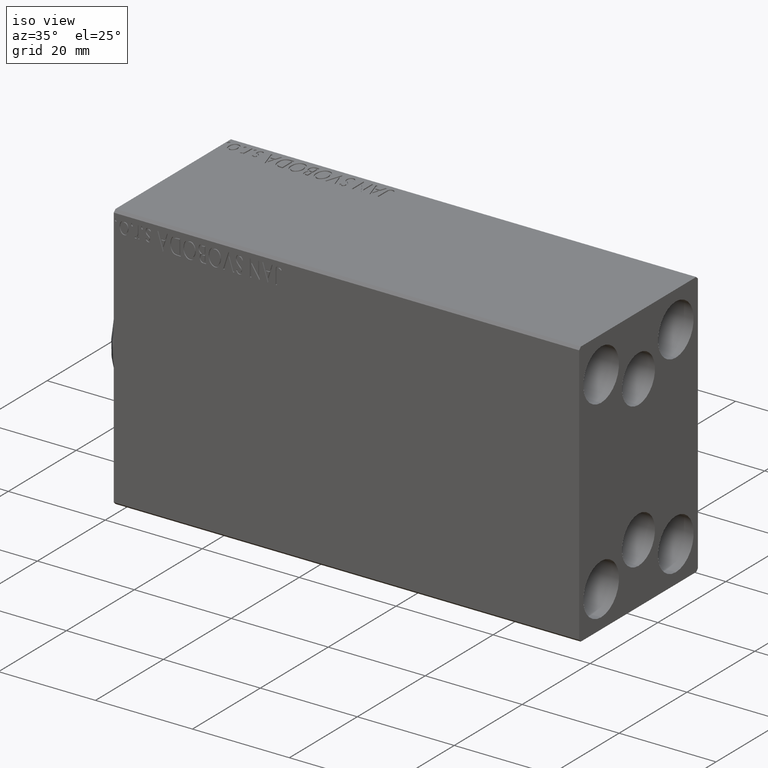
[diagram: clean part render]
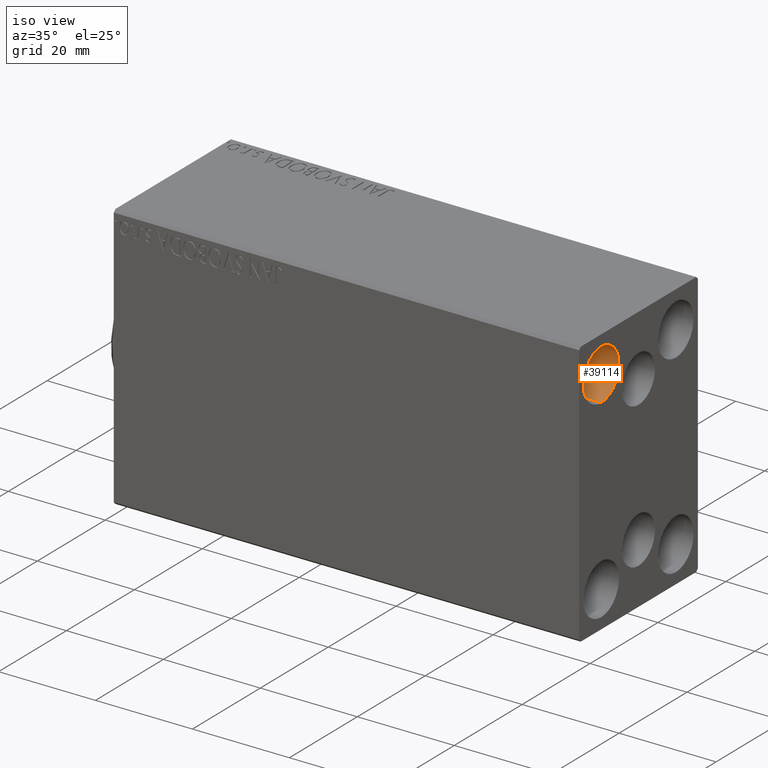
[diagram: same view with one face highlighted and labeled with its STEP entity id]
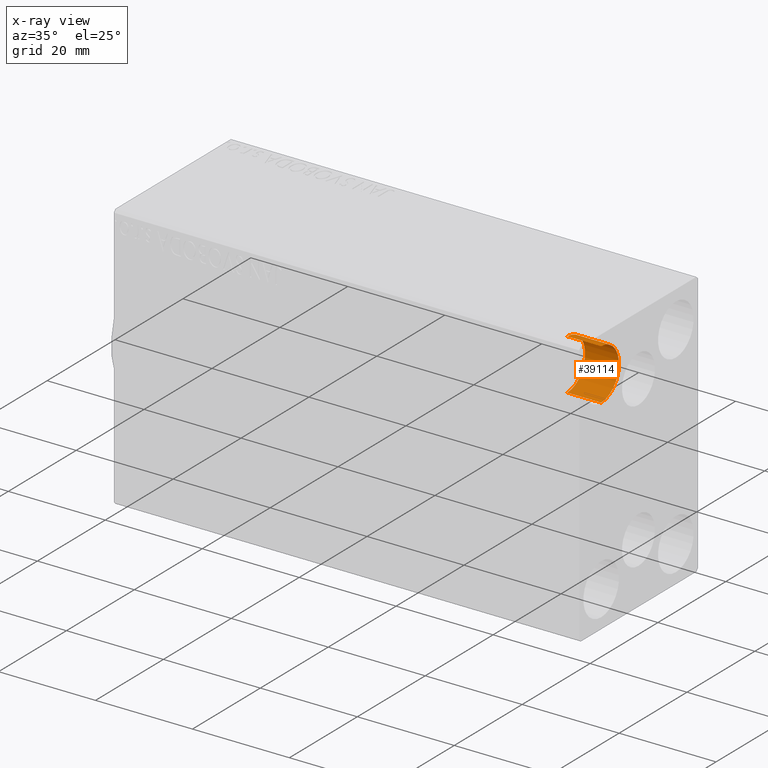
[diagram: x-ray of the same camera — body ghosted, the highlighted face saturated]
A machine part, iso view. The second image highlights one B-rep face of the part: STEP entity #39114.
The next image is the same camera in x-ray: the body ghosted, the highlighted face saturated — about 0% of this face is hidden behind the body in this view.
In plain terms, the highlighted cylindrical surface (edge-blend (fillet) strip) has radius 5.25 mm, axis along (1, 0, 0).
Its self-contained STEP definition (entity closure, byte-faithful):
#1154 = VERTEX_POINT ( 'NONE', #5988 ) ;
#2236 = CIRCLE ( 'NONE', #13555, 5.250000000000000888 ) ;
#2254 = CARTESIAN_POINT ( 'NONE',  ( 96.00000000000000000, -11.00000000000000355, 14.75000000000000000 ) ) ;
#2267 = CYLINDRICAL_SURFACE ( 'NONE', #35086, 5.250000000000000888 ) ;
#2836 = CIRCLE ( 'NONE', #7103, 5.250000000000000888 ) ;
#3529 = VECTOR ( 'NONE', #9769, 1000.000000000000000 ) ;
#4418 = CARTESIAN_POINT ( 'NONE',  ( 89.00000000000000000, -11.00000000000000355, 20.00000000000000000 ) ) ;
#5778 = LINE ( 'NONE', #15976, #23354 ) ;
#5988 = CARTESIAN_POINT ( 'NONE',  ( 89.00000000000000000, -11.00000000000000355, 25.25000000000000000 ) ) ;
#6759 = DIRECTION ( 'NONE',  ( 0.000000000000000000, 0.000000000000000000, 1.000000000000000000 ) ) ;
#7103 = AXIS2_PLACEMENT_3D ( 'NONE', #4418, #17062, #14604 ) ;
#9769 = DIRECTION ( 'NONE',  ( 1.000000000000000000, -0.000000000000000000, -0.000000000000000000 ) ) ;
#9991 = CARTESIAN_POINT ( 'NONE',  ( 89.00000000000000000, -11.00000000000000355, 14.75000000000000000 ) ) ;
#10327 = CARTESIAN_POINT ( 'NONE',  ( 89.00000000000000000, -11.00000000000000355, 14.75000000000000000 ) ) ;
#13555 = AXIS2_PLACEMENT_3D ( 'NONE', #23615, #37166, #6759 ) ;
#14460 = ORIENTED_EDGE ( 'NONE', *, *, #18075, .F. ) ;
#14604 = DIRECTION ( 'NONE',  ( 0.000000000000000000, 0.000000000000000000, 1.000000000000000000 ) ) ;
#14862 = EDGE_CURVE ( 'NONE', #39049, #37230, #40847, .T. ) ;
#15084 = ORIENTED_EDGE ( 'NONE', *, *, #14862, .T. ) ;
#15976 = CARTESIAN_POINT ( 'NONE',  ( 89.00000000000000000, -11.00000000000000355, 25.25000000000000000 ) ) ;
#17062 = DIRECTION ( 'NONE',  ( -1.000000000000000000, -0.000000000000000000, -0.000000000000000000 ) ) ;
#18075 = EDGE_CURVE ( 'NONE', #1154, #42026, #5778, .T. ) ;
#19558 = EDGE_CURVE ( 'NONE', #1154, #39049, #2836, .T. ) ;
#23354 = VECTOR ( 'NONE', #29509, 1000.000000000000000 ) ;
#23615 = CARTESIAN_POINT ( 'NONE',  ( 96.00000000000000000, -11.00000000000000355, 20.00000000000000000 ) ) ;
#23775 = EDGE_CURVE ( 'NONE', #42026, #37230, #2236, .T. ) ;
#25778 = FACE_OUTER_BOUND ( 'NONE', #33599, .T. ) ;
#28055 = ORIENTED_EDGE ( 'NONE', *, *, #23775, .F. ) ;
#29509 = DIRECTION ( 'NONE',  ( 1.000000000000000000, -0.000000000000000000, -0.000000000000000000 ) ) ;
#33599 = EDGE_LOOP ( 'NONE', ( #14460, #34243, #15084, #28055 ) ) ;
#34243 = ORIENTED_EDGE ( 'NONE', *, *, #19558, .T. ) ;
#34733 = DIRECTION ( 'NONE',  ( 1.000000000000000000, -0.000000000000000000, -0.000000000000000000 ) ) ;
#35086 = AXIS2_PLACEMENT_3D ( 'NONE', #39337, #34733, #42658 ) ;
#37166 = DIRECTION ( 'NONE',  ( -1.000000000000000000, -0.000000000000000000, -0.000000000000000000 ) ) ;
#37230 = VERTEX_POINT ( 'NONE', #2254 ) ;
#39049 = VERTEX_POINT ( 'NONE', #10327 ) ;
#39114 = ADVANCED_FACE ( 'NONE', ( #25778 ), #2267, .F. ) ;
#39337 = CARTESIAN_POINT ( 'NONE',  ( 89.00000000000000000, -11.00000000000000355, 20.00000000000000000 ) ) ;
#40847 = LINE ( 'NONE', #9991, #3529 ) ;
#41125 = CARTESIAN_POINT ( 'NONE',  ( 96.00000000000000000, -11.00000000000000355, 25.25000000000000000 ) ) ;
#42026 = VERTEX_POINT ( 'NONE', #41125 ) ;
#42658 = DIRECTION ( 'NONE',  ( 0.000000000000000000, 0.000000000000000000, -1.000000000000000000 ) ) ;